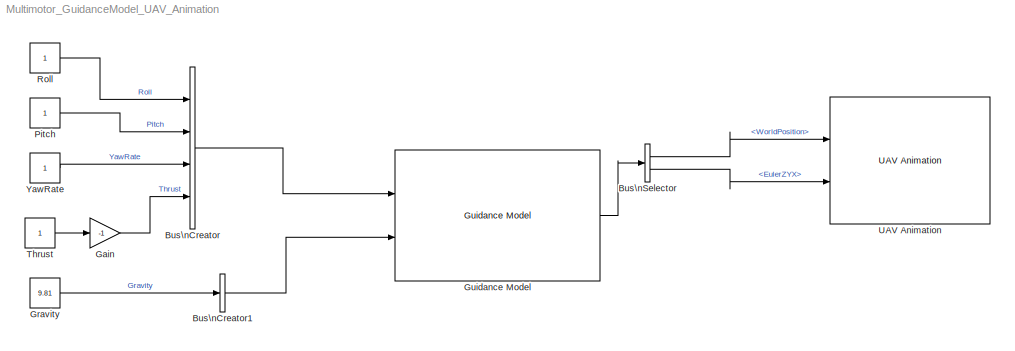
MODEL Multimotor_GuidanceModel_UAV_Animation
KIND model
BLOCK [BusCreator] Bus\nCreator
  DisplayOption = bar
  InheritFromInputs = on
  Inputs = Roll,Pitch,YawRate,Thrust
  NonVirtualBus = on
  OutDataTypeStr = Bus: MultirotorGuidanceControlBus
  Ports = [4, 1]
  SID = 1
BLOCK [BusCreator] Bus\nCreator1
  DisplayOption = bar
  InheritFromInputs = on
  Inputs = Gravity
  NonVirtualBus = on
  OutDataTypeStr = Bus: MultirotorGuidanceEnvironmentBus
  Ports = [1, 1]
  SID = 2
BLOCK [BusSelector] Bus\nSelector
  OutputSignals = WorldPosition,EulerZYX
  Ports = [1, 2]
  SID = 3
BLOCK [Gain] Gain
  Gain = -1
  SID = 16
BLOCK [Constant] Gravity
  SID = 6
  Value = 9.81
BLOCK [Reference] Guidance Model  REF=uavalgslib/Guidance Model
  ControlBusName = 'MultirotorGuidanceControlBus'
  DataType = double
  EnvironmentBusName = 'MultirotorGuidanceEnvironmentBus'
  FlightPathAngleLimitsFixedWing = [-pi/2, pi/2]
  InitialAirSpeedFixedWing = 0
  InitialBodyAngularRateRPYMultirotor = [0; 0; 0]
  InitialEastFixedWing = 0
  InitialEulerZYXMultirotor = [0; 0; 0]
  InitialFlightPathAngleFixedWing = 0
  InitialHeadingAngleFixedWing = 0
  InitialHeightFixedWing = 0
  InitialNorthFixedWing = 0
  InitialRollAngleFixedWing = 0
  InitialRollAngleRateFixedWing = 0
  InitialThrustMultirotor = 0
  InitialWorldPositionMultirotor = [0; 0; 0]
  InitialWorldVelocityMultirotor = [0; 0; 0]
  MassMultirotor = 0.1
  ModelType = MultirotorGuidance
  PAirSpeedFixedWing = 1
  PDPitchMultirotor = [3402.97, 116.67]
  PDRollFixedWing = [3402.97, 116.67]
  PDRollMultirotor = [3402.97,116.67]
  PFlightPathAngleFixedWing = 39
  PHeadingAngleFixedWing = 3.9
  PHeightFixedWing = 3.9
  PThrustMultirotor = 3900
  PYawRateMultirotor = 1950
  Ports = [2, 1]
  RTWMemSecDataConstants = Inherit from model
  RTWMemSecDataInternal = Inherit from model
  RTWMemSecDataParameters = Inherit from model
  RTWMemSecFuncExecute = Inherit from model
  RTWMemSecFuncInitTerm = Inherit from model
  SID = 7
  SimulateUsing = Interpreted execution
  SourceBlock = uavalgslib/Guidance Model
  SourceType = Guidance Model
  SpecifiedDataType = double
  StateBusName = 'MultirotorGuidanceStateBus'
BLOCK [Constant] Pitch
  SID = 8
BLOCK [Constant] Roll
  SID = 9
BLOCK [Constant] Thrust
  SID = 4
BLOCK [Reference] UAV Animation  REF=uavutilslib/UAV Animation
  DrawMarkers = off
  DynamicUAVConfig = off
  InertialZDirection = Down
  NumUAV = 1
  Ports = [2]
  RotationFormat = Euler ZYX
  SID = 17
  SampleTime = -1
  SourceBlock = uavutilslib/UAV Animation
  SourceType = uav.sluav.internal.system.UAVAnimation
  UAVColor = [1 0 0]
  UAVSize = 1
  UAVTrajectoryAlpha = 1
  UAVType = Multirotor
BLOCK [Constant] YawRate
  SID = 12
LINE Bus\nCreator1:1 -> Guidance Model:2
LINE Bus\nCreator:1 -> Guidance Model:1
LINE Bus\nSelector:1 -> UAV Animation:1
LINE Bus\nSelector:2 -> UAV Animation:2
LINE Gain:1 -> Bus\nCreator:4
LINE Gravity:1 -> Bus\nCreator1:1
LINE Guidance Model:1 -> Bus\nSelector:1
LINE Pitch:1 -> Bus\nCreator:2
LINE Roll:1 -> Bus\nCreator:1
LINE Thrust:1 -> Gain:1
LINE YawRate:1 -> Bus\nCreator:3
